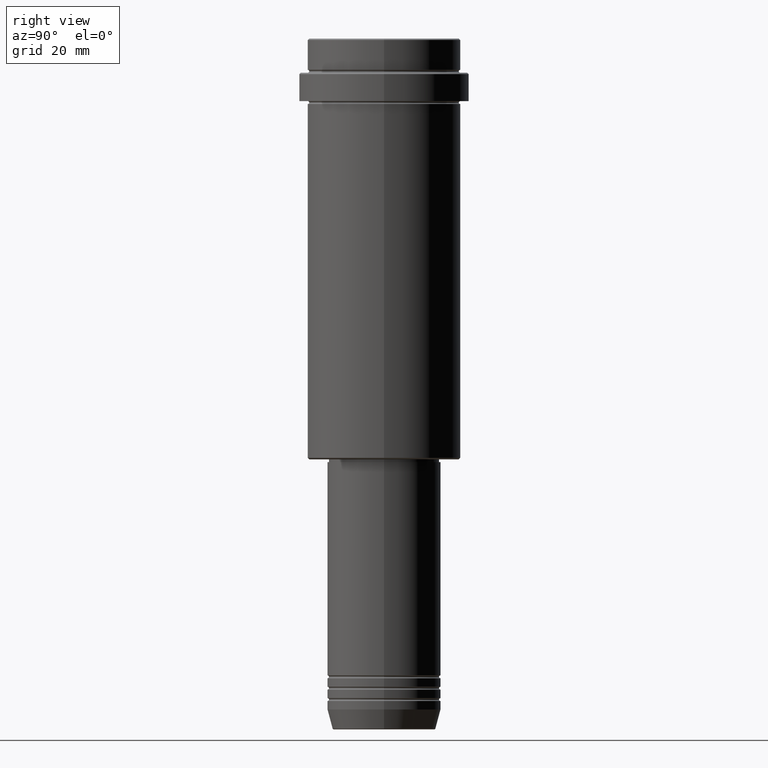
[diagram: clean part render]
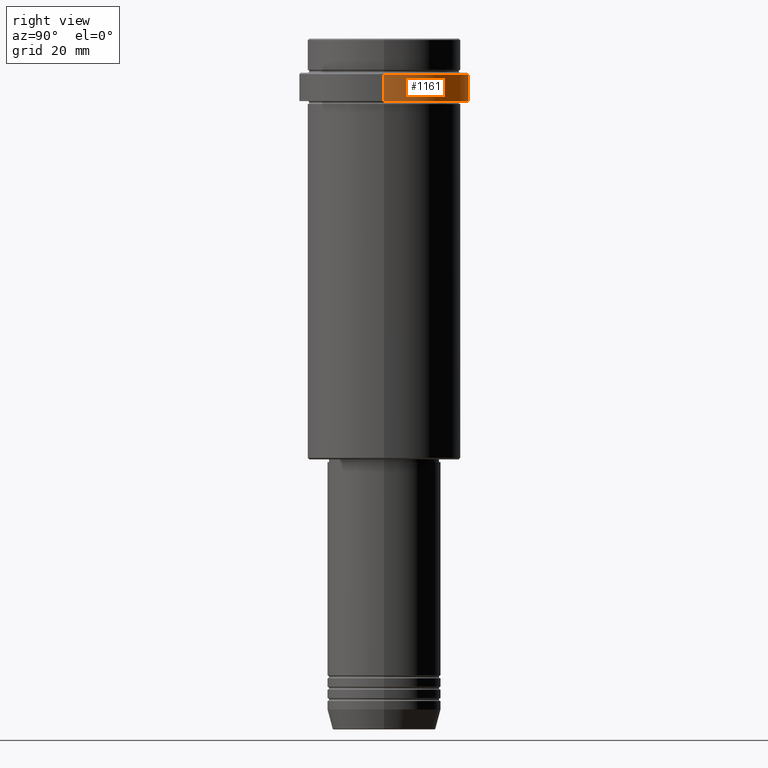
[diagram: same view with one face highlighted and labeled with its STEP entity id]
A machine part, right view. The second image highlights one B-rep face of the part: STEP entity #1161.
In plain terms, the highlighted cylindrical surface (partial cylindrical patch) has radius 30 mm, axis along (-0, -0, 1).
Its self-contained STEP definition (entity closure, byte-faithful):
#7 = CYLINDRICAL_SURFACE ( 'NONE', #935, 30.00000000000000000 ) ;
#13 = CARTESIAN_POINT ( 'NONE',  ( 0.000000000000000000, 0.000000000000000000, -22.00000000000000355 ) ) ;
#69 = VERTEX_POINT ( 'NONE', #1203 ) ;
#83 = CIRCLE ( 'NONE', #1165, 29.99999999999999645 ) ;
#86 = VERTEX_POINT ( 'NONE', #641 ) ;
#125 = EDGE_CURVE ( 'NONE', #86, #701, #376, .T. ) ;
#249 = LINE ( 'NONE', #683, #447 ) ;
#297 = EDGE_LOOP ( 'NONE', ( #1357, #780, #1282, #778 ) ) ;
#339 = DIRECTION ( 'NONE',  ( -0.000000000000000000, -0.000000000000000000, 1.000000000000000000 ) ) ;
#340 = EDGE_CURVE ( 'NONE', #69, #701, #1021, .T. ) ;
#342 = CARTESIAN_POINT ( 'NONE',  ( 30.00000000000000000, 0.000000000000000000, -12.50000000000006573 ) ) ;
#376 = CIRCLE ( 'NONE', #1353, 30.00000000000000000 ) ;
#385 = DIRECTION ( 'NONE',  ( -0.000000000000000000, -0.000000000000000000, 1.000000000000000000 ) ) ;
#447 = VECTOR ( 'NONE', #1330, 1000.000000000000000 ) ;
#641 = CARTESIAN_POINT ( 'NONE',  ( -30.00000000000000000, 3.673940397442059178E-15, -12.50000000000006573 ) ) ;
#683 = CARTESIAN_POINT ( 'NONE',  ( -30.00000000000000000, 3.673940397442059178E-15, 0.000000000000000000 ) ) ;
#701 = VERTEX_POINT ( 'NONE', #342 ) ;
#753 = CARTESIAN_POINT ( 'NONE',  ( 0.000000000000000000, 0.000000000000000000, 0.000000000000000000 ) ) ;
#778 = ORIENTED_EDGE ( 'NONE', *, *, #340, .F. ) ;
#780 = ORIENTED_EDGE ( 'NONE', *, *, #1190, .T. ) ;
#809 = EDGE_CURVE ( 'NONE', #69, #1168, #83, .T. ) ;
#841 = DIRECTION ( 'NONE',  ( 1.000000000000000000, 0.000000000000000000, 0.000000000000000000 ) ) ;
#890 = CARTESIAN_POINT ( 'NONE',  ( -29.99999999999999645, 3.673940397442058389E-15, -22.00000000000000355 ) ) ;
#913 = VECTOR ( 'NONE', #385, 1000.000000000000000 ) ;
#935 = AXIS2_PLACEMENT_3D ( 'NONE', #753, #339, #1232 ) ;
#952 = CARTESIAN_POINT ( 'NONE',  ( 30.00000000000000000, 0.000000000000000000, 0.000000000000000000 ) ) ;
#1021 = LINE ( 'NONE', #952, #913 ) ;
#1087 = DIRECTION ( 'NONE',  ( 0.000000000000000000, 0.000000000000000000, -1.000000000000000000 ) ) ;
#1115 = FACE_OUTER_BOUND ( 'NONE', #297, .T. ) ;
#1161 = ADVANCED_FACE ( 'NONE', ( #1115 ), #7, .T. ) ;
#1165 = AXIS2_PLACEMENT_3D ( 'NONE', #13, #1289, #1186 ) ;
#1168 = VERTEX_POINT ( 'NONE', #890 ) ;
#1186 = DIRECTION ( 'NONE',  ( 1.000000000000000000, 0.000000000000000000, 0.000000000000000000 ) ) ;
#1190 = EDGE_CURVE ( 'NONE', #1168, #86, #249, .T. ) ;
#1203 = CARTESIAN_POINT ( 'NONE',  ( 29.99999999999999645, 0.000000000000000000, -22.00000000000000355 ) ) ;
#1218 = CARTESIAN_POINT ( 'NONE',  ( 0.000000000000000000, 0.000000000000000000, -12.50000000000006573 ) ) ;
#1232 = DIRECTION ( 'NONE',  ( 1.000000000000000000, 0.000000000000000000, 0.000000000000000000 ) ) ;
#1282 = ORIENTED_EDGE ( 'NONE', *, *, #125, .T. ) ;
#1289 = DIRECTION ( 'NONE',  ( -0.000000000000000000, -0.000000000000000000, 1.000000000000000000 ) ) ;
#1330 = DIRECTION ( 'NONE',  ( -0.000000000000000000, -0.000000000000000000, 1.000000000000000000 ) ) ;
#1353 = AXIS2_PLACEMENT_3D ( 'NONE', #1218, #1087, #841 ) ;
#1357 = ORIENTED_EDGE ( 'NONE', *, *, #809, .T. ) ;